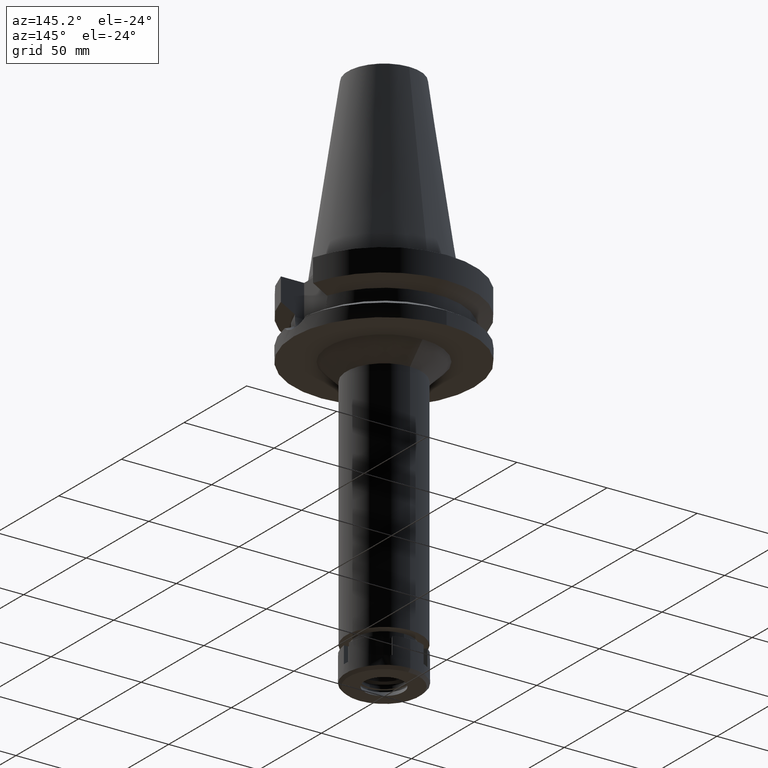
[diagram: clean part render]
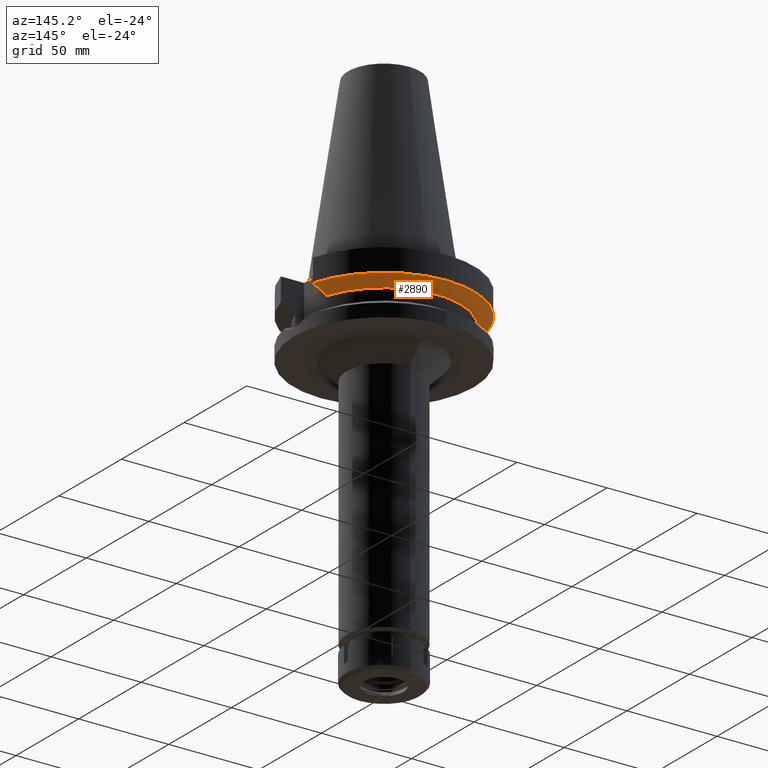
[diagram: same view with one face highlighted and labeled with its STEP entity id]
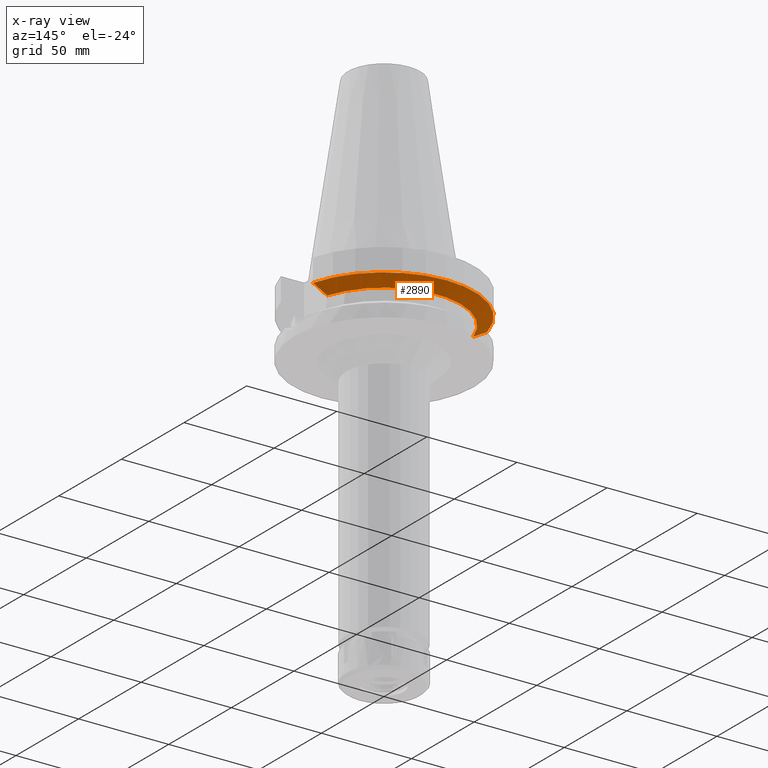
[diagram: x-ray of the same camera — body ghosted, the highlighted face saturated]
A machine part, auxiliary view. The second image highlights one B-rep face of the part: STEP entity #2890.
The next image is the same camera in x-ray: the body ghosted, the highlighted face saturated — about 1% of this face is hidden behind the body in this view.
In plain terms, the highlighted conical surface has half-angle 60 deg.
Its self-contained STEP definition (entity closure, byte-faithful):
#124 = DIRECTION ( 'NONE',  ( 0.0000000000000000000, 0.0000000000000000000, -1.000000000000000000 ) ) ;
#249 = B_SPLINE_CURVE_WITH_KNOTS ( 'NONE', 3,
 ( #2767, #1385, #1436, #3657 ),
 .UNSPECIFIED., .F., .F.,
 ( 4, 4 ),
 ( 0.0000000000000000000, 1.000000000000000000 ),
 .UNSPECIFIED. ) ;
#409 = EDGE_CURVE ( 'NONE', #3024, #621, #2065, .T. ) ;
#571 = CONICAL_SURFACE ( 'NONE', #1069, 46.25000000000000000, 1.047197551196400456 ) ;
#597 = DIRECTION ( 'NONE',  ( 0.0000000000000000000, 0.0000000000000000000, 1.000000000000000000 ) ) ;
#621 = VERTEX_POINT ( 'NONE', #3516 ) ;
#759 = CARTESIAN_POINT ( 'NONE',  ( 0.0000000000000000000, 1.006319759053999930E-14, -17.82775574519000017 ) ) ;
#1052 = DIRECTION ( 'NONE',  ( 0.0000000000000000000, 1.000000000000000000, 0.0000000000000000000 ) ) ;
#1069 = AXIS2_PLACEMENT_3D ( 'NONE', #759, #2441, #1052 ) ;
#1363 = ORIENTED_EDGE ( 'NONE', *, *, #409, .T. ) ;
#1385 = CARTESIAN_POINT ( 'NONE',  ( -42.90863232185251519, 12.84999314245379587, -18.67324368411542324 ) ) ;
#1435 = CARTESIAN_POINT ( 'NONE',  ( 45.51179901593025079, 12.85000770987397090, -17.22986705846993161 ) ) ;
#1436 = CARTESIAN_POINT ( 'NONE',  ( -45.51180301983914944, 12.85000771239541351, -17.22986482407244324 ) ) ;
#1484 = CARTESIAN_POINT ( 'NONE',  ( 48.32056912815000516, 12.85000385725999905, -15.66265768273000170 ) ) ;
#1619 = VERTEX_POINT ( 'NONE', #2489 ) ;
#1716 = EDGE_CURVE ( 'NONE', #2477, #1619, #249, .T. ) ;
#1771 = AXIS2_PLACEMENT_3D ( 'NONE', #3078, #597, #3353 ) ;
#1887 = CARTESIAN_POINT ( 'NONE',  ( 48.32056912815000516, 12.85000385725999905, -15.66265768273000170 ) ) ;
#2014 = CARTESIAN_POINT ( 'NONE',  ( 42.90862489466591256, 12.84999313797018594, -18.67324780284967645 ) ) ;
#2065 = B_SPLINE_CURVE_WITH_KNOTS ( 'NONE', 3,
 ( #1484, #1435, #2014, #2292 ),
 .UNSPECIFIED., .F., .F.,
 ( 4, 4 ),
 ( 0.0000000000000000000, 1.000000000000000000 ),
 .UNSPECIFIED. ) ;
#2292 = CARTESIAN_POINT ( 'NONE',  ( 40.51083297203000200, 12.84999657246999938, -19.99284555851999912 ) ) ;
#2381 = ORIENTED_EDGE ( 'NONE', *, *, #3087, .F. ) ;
#2390 = DIRECTION ( 'NONE',  ( -0.9531960443486575674, 0.3023529411764863672, 0.0000000000000000000 ) ) ;
#2441 = DIRECTION ( 'NONE',  ( 0.0000000000000000000, 0.0000000000000000000, 1.000000000000000000 ) ) ;
#2477 = VERTEX_POINT ( 'NONE', #2774 ) ;
#2489 = CARTESIAN_POINT ( 'NONE',  ( -48.32056912780999625, 12.85000385852000093, -15.66265767138999898 ) ) ;
#2695 = FACE_OUTER_BOUND ( 'NONE', #3663, .T. ) ;
#2767 = CARTESIAN_POINT ( 'NONE',  ( -40.51083188481999997, 12.84999999999999964, -19.99281925464999787 ) ) ;
#2774 = CARTESIAN_POINT ( 'NONE',  ( -40.51083188481999997, 12.84999999999999964, -19.99281925464999787 ) ) ;
#2841 = AXIS2_PLACEMENT_3D ( 'NONE', #2953, #124, #2390 ) ;
#2890 = ADVANCED_FACE ( 'NONE', ( #2695 ), #571, .T. ) ;
#2953 = CARTESIAN_POINT ( 'NONE',  ( 0.0000000000000000000, 1.006319759053999930E-14, -19.99281925464999787 ) ) ;
#3024 = VERTEX_POINT ( 'NONE', #1887 ) ;
#3078 = CARTESIAN_POINT ( 'NONE',  ( 0.0000000000000000000, 1.006319759053999930E-14, -15.66269223573000069 ) ) ;
#3087 = EDGE_CURVE ( 'NONE', #3024, #1619, #3486, .T. ) ;
#3088 = CIRCLE ( 'NONE', #2841, 42.50000000000002132 ) ;
#3277 = ORIENTED_EDGE ( 'NONE', *, *, #3356, .F. ) ;
#3353 = DIRECTION ( 'NONE',  ( 0.0000000000000000000, 1.000000000000000000, 0.0000000000000000000 ) ) ;
#3356 = EDGE_CURVE ( 'NONE', #2477, #621, #3088, .T. ) ;
#3486 = CIRCLE ( 'NONE', #1771, 50.00000000000000000 ) ;
#3516 = CARTESIAN_POINT ( 'NONE',  ( 40.51083297203000200, 12.84999657246999938, -19.99284555851999912 ) ) ;
#3596 = ORIENTED_EDGE ( 'NONE', *, *, #1716, .T. ) ;
#3657 = CARTESIAN_POINT ( 'NONE',  ( -48.32056912780999625, 12.85000385852000093, -15.66265767138999898 ) ) ;
#3663 = EDGE_LOOP ( 'NONE', ( #2381, #1363, #3277, #3596 ) ) ;